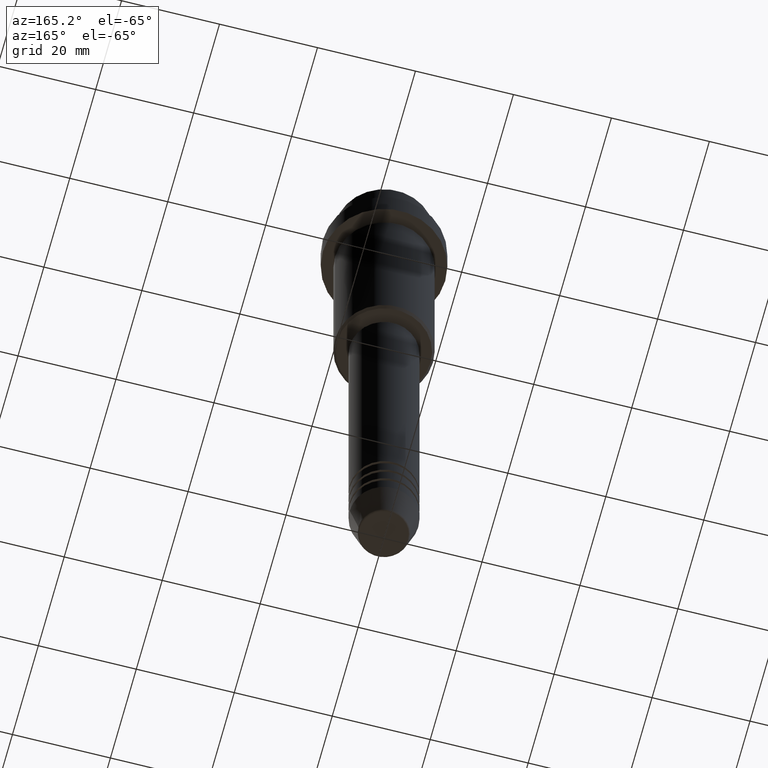
[diagram: clean part render]
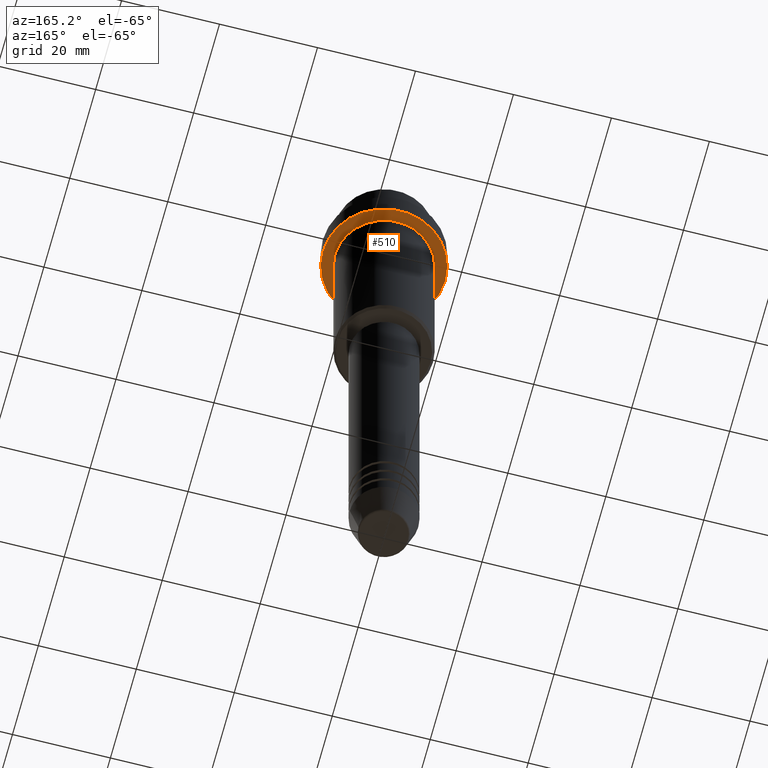
[diagram: same view with one face highlighted and labeled with its STEP entity id]
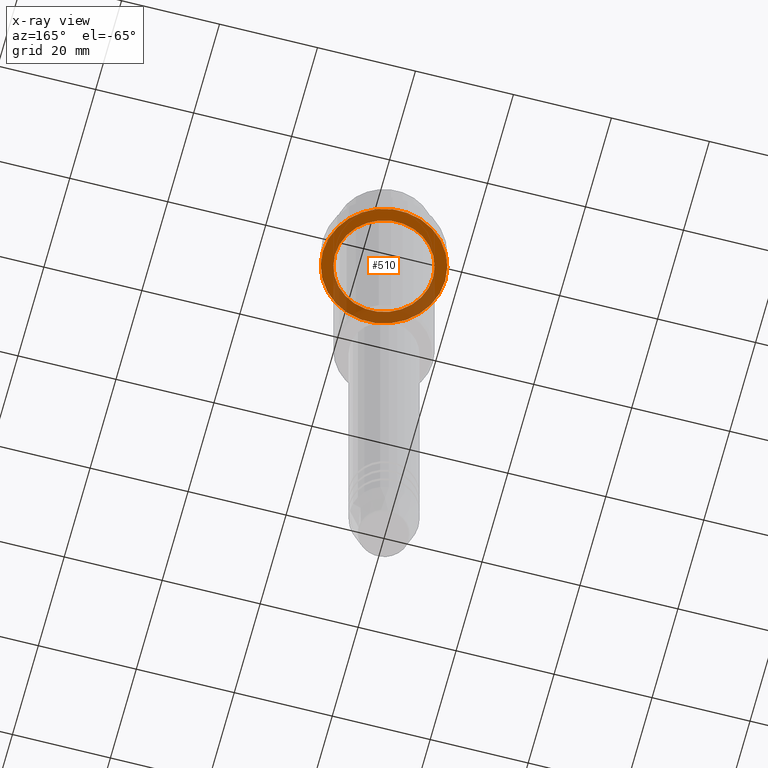
[diagram: x-ray of the same camera — body ghosted, the highlighted face saturated]
A machine part, auxiliary view. The second image highlights one B-rep face of the part: STEP entity #510.
The next image is the same camera in x-ray: the body ghosted, the highlighted face saturated — about 35% of this face is hidden behind the body in this view.
In plain terms, the highlighted planar face has unit normal (0, 0, -1).
Its self-contained STEP definition (entity closure, byte-faithful):
#22 = ORIENTED_EDGE ( 'NONE', *, *, #113, .T. ) ;
#80 = PLANE ( 'NONE',  #202 ) ;
#113 = EDGE_CURVE ( 'NONE', #245, #343, #422, .T. ) ;
#202 = AXIS2_PLACEMENT_3D ( 'NONE', #1393, #958, #421 ) ;
#208 = DIRECTION ( 'NONE',  ( 1.000000000000000000, 0.000000000000000000, 0.000000000000000000 ) ) ;
#245 = VERTEX_POINT ( 'NONE', #641 ) ;
#247 = VERTEX_POINT ( 'NONE', #535 ) ;
#269 = ORIENTED_EDGE ( 'NONE', *, *, #457, .F. ) ;
#289 = ORIENTED_EDGE ( 'NONE', *, *, #973, .T. ) ;
#290 = AXIS2_PLACEMENT_3D ( 'NONE', #1284, #414, #208 ) ;
#343 = VERTEX_POINT ( 'NONE', #1265 ) ;
#376 = AXIS2_PLACEMENT_3D ( 'NONE', #1304, #769, #976 ) ;
#414 = DIRECTION ( 'NONE',  ( -0.000000000000000000, -0.000000000000000000, 1.000000000000000000 ) ) ;
#417 = VERTEX_POINT ( 'NONE', #708 ) ;
#421 = DIRECTION ( 'NONE',  ( -1.000000000000000000, 0.000000000000000000, -0.000000000000000000 ) ) ;
#422 = CIRCLE ( 'NONE', #1293, 9.999999999999992895 ) ;
#457 = EDGE_CURVE ( 'NONE', #417, #247, #1306, .T. ) ;
#469 = CIRCLE ( 'NONE', #376, 12.50000000000000000 ) ;
#497 = DIRECTION ( 'NONE',  ( -0.000000000000000000, -0.000000000000000000, 1.000000000000000000 ) ) ;
#510 = ADVANCED_FACE ( 'NONE', ( #766, #1188 ), #80, .T. ) ;
#535 = CARTESIAN_POINT ( 'NONE',  ( -12.50000000000000000, 1.530808498934191521E-15, -15.00000000000000000 ) ) ;
#641 = CARTESIAN_POINT ( 'NONE',  ( -9.999999999999992895, 0.000000000000000000, -15.00000000000000000 ) ) ;
#667 = EDGE_CURVE ( 'NONE', #247, #417, #469, .T. ) ;
#694 = AXIS2_PLACEMENT_3D ( 'NONE', #928, #1034, #1258 ) ;
#708 = CARTESIAN_POINT ( 'NONE',  ( 12.50000000000000000, 0.000000000000000000, -15.00000000000000000 ) ) ;
#736 = EDGE_LOOP ( 'NONE', ( #269, #963 ) ) ;
#766 = FACE_BOUND ( 'NONE', #951, .T. ) ;
#769 = DIRECTION ( 'NONE',  ( -0.000000000000000000, -0.000000000000000000, 1.000000000000000000 ) ) ;
#818 = CARTESIAN_POINT ( 'NONE',  ( 0.000000000000000000, 0.000000000000000000, -15.00000000000000000 ) ) ;
#928 = CARTESIAN_POINT ( 'NONE',  ( 0.000000000000000000, 0.000000000000000000, -15.00000000000000000 ) ) ;
#951 = EDGE_LOOP ( 'NONE', ( #22, #289 ) ) ;
#958 = DIRECTION ( 'NONE',  ( 0.000000000000000000, 0.000000000000000000, -1.000000000000000000 ) ) ;
#963 = ORIENTED_EDGE ( 'NONE', *, *, #667, .F. ) ;
#973 = EDGE_CURVE ( 'NONE', #343, #245, #1015, .T. ) ;
#976 = DIRECTION ( 'NONE',  ( 1.000000000000000000, 0.000000000000000000, 0.000000000000000000 ) ) ;
#1015 = CIRCLE ( 'NONE', #694, 9.999999999999992895 ) ;
#1034 = DIRECTION ( 'NONE',  ( -0.000000000000000000, -0.000000000000000000, 1.000000000000000000 ) ) ;
#1042 = DIRECTION ( 'NONE',  ( -1.000000000000000000, 0.000000000000000000, 0.000000000000000000 ) ) ;
#1188 = FACE_OUTER_BOUND ( 'NONE', #736, .T. ) ;
#1258 = DIRECTION ( 'NONE',  ( -1.000000000000000000, 0.000000000000000000, 0.000000000000000000 ) ) ;
#1265 = CARTESIAN_POINT ( 'NONE',  ( 9.999999999999992895, 1.224646799147352468E-15, -15.00000000000000000 ) ) ;
#1284 = CARTESIAN_POINT ( 'NONE',  ( 0.000000000000000000, 0.000000000000000000, -15.00000000000000000 ) ) ;
#1293 = AXIS2_PLACEMENT_3D ( 'NONE', #818, #497, #1042 ) ;
#1304 = CARTESIAN_POINT ( 'NONE',  ( 0.000000000000000000, 0.000000000000000000, -15.00000000000000000 ) ) ;
#1306 = CIRCLE ( 'NONE', #290, 12.50000000000000000 ) ;
#1393 = CARTESIAN_POINT ( 'NONE',  ( 0.000000000000000000, 12.50000000000000000, -15.00000000000000000 ) ) ;